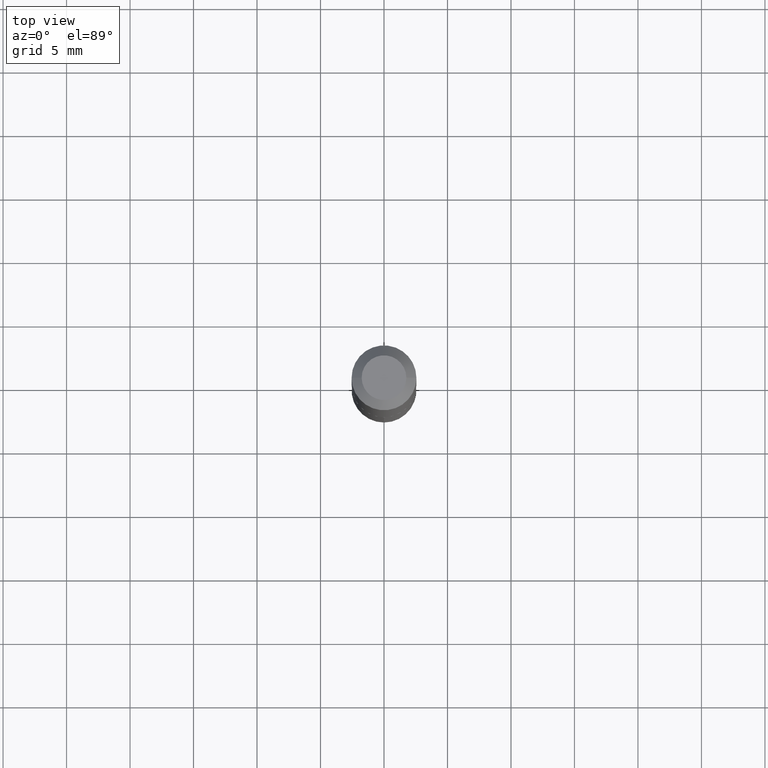
[diagram: clean part render]
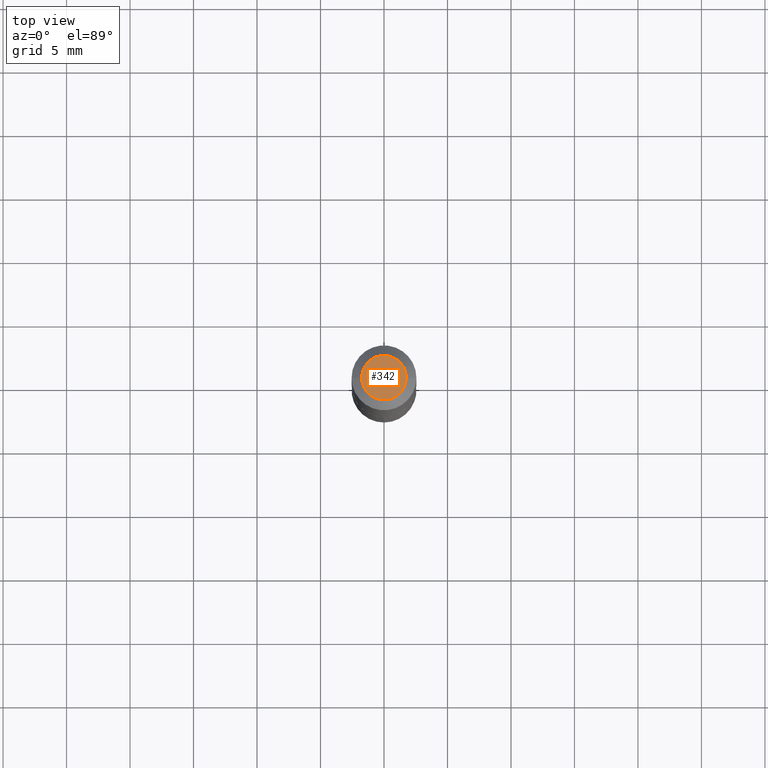
[diagram: same view with one face highlighted and labeled with its STEP entity id]
A machine part, top view. The second image highlights one B-rep face of the part: STEP entity #342.
In plain terms, the highlighted planar face has unit normal (0, -0, -1).
Its self-contained STEP definition (entity closure, byte-faithful):
#9 = DIRECTION ( 'NONE',  ( 2.438088387897960049E-29, -3.491481338843145188E-15, -1.000000000000000000 ) ) ;
#19 = AXIS2_PLACEMENT_3D ( 'NONE', #363, #100, #36 ) ;
#35 = FACE_OUTER_BOUND ( 'NONE', #156, .T. ) ;
#36 = DIRECTION ( 'NONE',  ( 1.000000000000000000, -6.982962677686267499E-15, 4.876166693236633478E-29 ) ) ;
#70 = DIRECTION ( 'NONE',  ( 1.000000000000000000, -6.982962677686267499E-15, 4.876166693236633478E-29 ) ) ;
#86 = CARTESIAN_POINT ( 'NONE',  ( -0.06925000000000000600, 5.381245613491975063E-16, -1.836970198756736818E-19 ) ) ;
#100 = DIRECTION ( 'NONE',  ( -2.445468806185136597E-29, 3.491481338843145583E-15, 1.000000000000000000 ) ) ;
#120 = AXIS2_PLACEMENT_3D ( 'NONE', #333, #9, #133 ) ;
#133 = DIRECTION ( 'NONE',  ( -1.000000000000000000, 6.982962677686265922E-15, -4.876176775795935793E-29 ) ) ;
#156 = EDGE_LOOP ( 'NONE', ( #169, #290 ) ) ;
#169 = ORIENTED_EDGE ( 'NONE', *, *, #335, .T. ) ;
#215 = DIRECTION ( 'NONE',  ( -2.445468806185136597E-29, 3.491481338843145583E-15, 1.000000000000000000 ) ) ;
#229 = AXIS2_PLACEMENT_3D ( 'NONE', #357, #215, #70 ) ;
#239 = VERTEX_POINT ( 'NONE', #86 ) ;
#245 = CARTESIAN_POINT ( 'NONE',  ( 0.06925000000000000600, -6.368391634802832925E-16, -1.836970198681843421E-19 ) ) ;
#290 = ORIENTED_EDGE ( 'NONE', *, *, #373, .T. ) ;
#291 = CIRCLE ( 'NONE', #229, 0.06925000000000000600 ) ;
#300 = CIRCLE ( 'NONE', #19, 0.06925000000000000600 ) ;
#324 = VERTEX_POINT ( 'NONE', #245 ) ;
#333 = CARTESIAN_POINT ( 'NONE',  ( 2.246126659431974788E-48, -3.206873584422701658E-34, -9.184850993605067327E-20 ) ) ;
#335 = EDGE_CURVE ( 'NONE', #239, #324, #291, .T. ) ;
#342 = ADVANCED_FACE ( 'NONE', ( #35 ), #360, .F. ) ;
#357 = CARTESIAN_POINT ( 'NONE',  ( 4.492253318863949576E-48, -6.413747168845403315E-34, -1.836970198721013465E-19 ) ) ;
#360 = PLANE ( 'NONE',  #120 ) ;
#363 = CARTESIAN_POINT ( 'NONE',  ( 4.492253318863949576E-48, -6.413747168845403315E-34, -1.836970198721013465E-19 ) ) ;
#373 = EDGE_CURVE ( 'NONE', #324, #239, #300, .T. ) ;